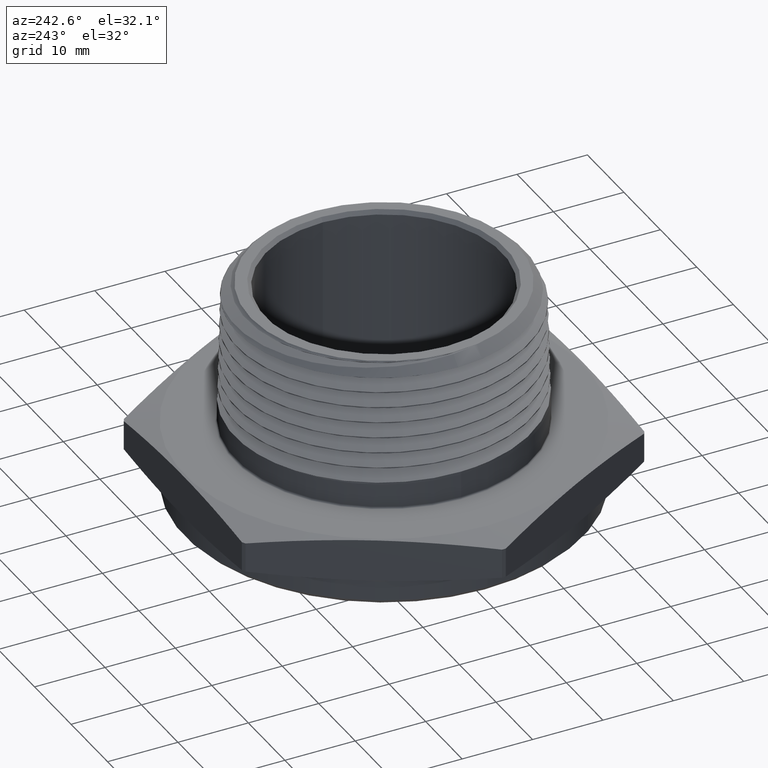
[diagram: clean part render]
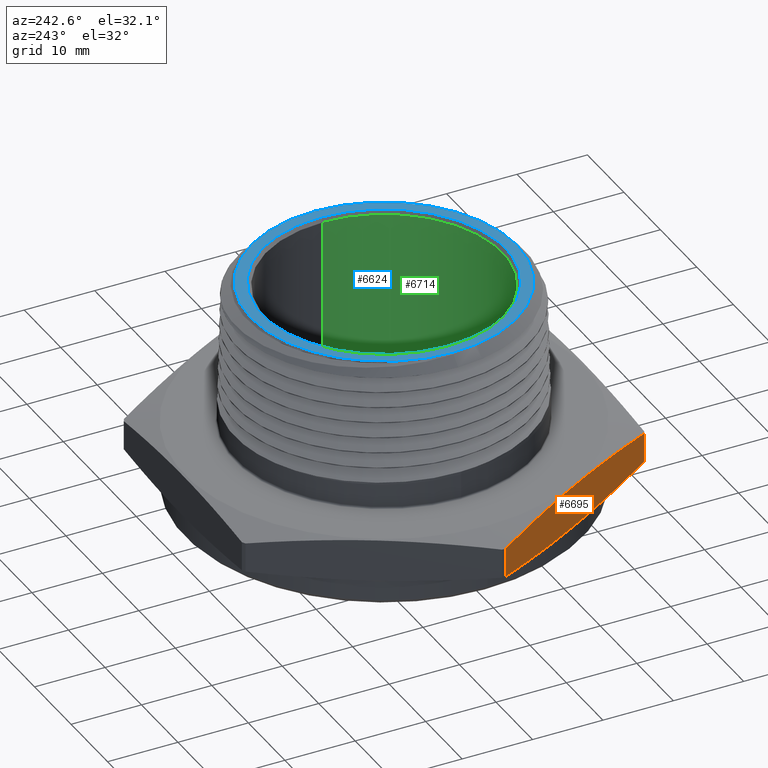
[diagram: same view with three faces highlighted in distinct colors, each labeled with its STEP entity id]
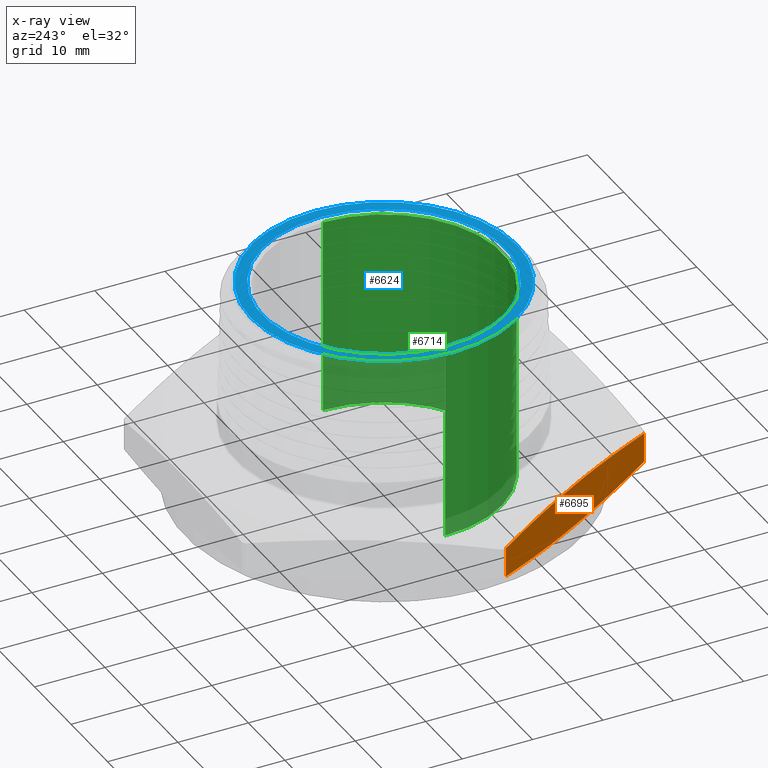
[diagram: x-ray of the same camera — body ghosted, the three highlighted faces saturated]
A machine part, auxiliary view with three faces highlighted in distinct colors.
The next image is the same camera in x-ray (body ghosted, the three faces saturated) — at least one of them is partly hidden behind the body in this view.
Their STEP definitions:

[orange] entity #6695 — the highlighted planar face has unit normal (0.866, 0.5, -0).
#12 = LINE ( 'NONE', #4220, #15 ) ;
#15 = VECTOR ( 'NONE', #4221, 39.37007874015748100 ) ;
#101 = LINE ( 'NONE', #5546, #114 ) ;
#114 = VECTOR ( 'NONE', #5547, 39.37007874015748100 ) ;
#187 = FACE_OUTER_BOUND ( 'NONE', #2501, .T. ) ;
#271 = AXIS2_PLACEMENT_3D ( 'NONE', #5781, #5786, #5787 ) ;
#473 = ORIENTED_EDGE ( 'NONE', *, *, #3991, .T. ) ;
#474 = ORIENTED_EDGE ( 'NONE', *, *, #4035, .T. ) ;
#475 = ORIENTED_EDGE ( 'NONE', *, *, #4002, .T. ) ;
#476 = ORIENTED_EDGE ( 'NONE', *, *, #4131, .T. ) ;
#2501 = EDGE_LOOP ( 'NONE', ( #473, #474, #475, #476 ) ) ;
#3991 = EDGE_CURVE ( 'NONE', #6254, #6331, #6643, .T. ) ;
#4002 = EDGE_CURVE ( 'NONE', #6303, #6252, #6645, .T. ) ;
#4035 = EDGE_CURVE ( 'NONE', #6331, #6303, #12, .T. ) ;
#4131 = EDGE_CURVE ( 'NONE', #6252, #6254, #101, .T. ) ;
#4220 = CARTESIAN_POINT ( 'NONE',  ( -0.6555614073276299100, -1.114534335027189000, -3.999857633734060300E-017 ) ) ;
#4221 = DIRECTION ( 'NONE',  ( 1.254986547952384500E-016, 0.0000000000000000000, 1.000000000000000000 ) ) ;
#5369 = CARTESIAN_POINT ( 'NONE',  ( -1.239876222532379400, -0.1024713874773429800, 0.02671091992180358400 ) ) ;
#5370 = CARTESIAN_POINT ( 'NONE',  ( -1.186756693877402100, -0.1944771099818744200, 0.01769192599360985800 ) ) ;
#5374 = CARTESIAN_POINT ( 'NONE',  ( -1.292995751187357100, -0.01046566497281166200, 0.03784316758887322500 ) ) ;
#5375 = CARTESIAN_POINT ( 'NONE',  ( -1.080517636567448000, -0.3784885549909372500, 0.005381381459842275600 ) ) ;
#5376 = CARTESIAN_POINT ( 'NONE',  ( -0.9742785792574937300, -0.5625000000000001100, -0.001130250226442271800 ) ) ;
#5377 = CARTESIAN_POINT ( 'NONE',  ( -0.8680395219475384200, -0.7465114450090627500, 0.005381381459842215700 ) ) ;
#5378 = CARTESIAN_POINT ( 'NONE',  ( -0.7618004646375845500, -0.9305228900181258300, 0.01769192599360976500 ) ) ;
#5379 = CARTESIAN_POINT ( 'NONE',  ( -0.7086809359826066200, -1.022528612522657100, 0.02671091992180349400 ) ) ;
#5380 = CARTESIAN_POINT ( 'NONE',  ( -0.6555614073276299100, -1.114534335027189000, 0.03784316758887314200 ) ) ;
#5401 = CARTESIAN_POINT ( 'NONE',  ( -0.7086809359826067300, -1.022528612522657100, 0.2132890800781963900 ) ) ;
#5403 = CARTESIAN_POINT ( 'NONE',  ( -0.7618004646375844400, -0.9305228900181258300, 0.2223080740063901300 ) ) ;
#5412 = CARTESIAN_POINT ( 'NONE',  ( -0.6555614073276299100, -1.114534335027189000, 0.2021568324111267000 ) ) ;
#5414 = CARTESIAN_POINT ( 'NONE',  ( -0.8680395219475387500, -0.7465114450090629700, 0.2346186185401576400 ) ) ;
#5415 = CARTESIAN_POINT ( 'NONE',  ( -0.9742785792574932800, -0.5624999999999998900, 0.2411302502264421600 ) ) ;
#5416 = CARTESIAN_POINT ( 'NONE',  ( -1.080517636567448000, -0.3784885549909370300, 0.2346186185401576400 ) ) ;
#5417 = CARTESIAN_POINT ( 'NONE',  ( -1.186756693877402600, -0.1944771099818742300, 0.2223080740063901300 ) ) ;
#5418 = CARTESIAN_POINT ( 'NONE',  ( -1.239876222532379800, -0.1024713874773426900, 0.2132890800781963600 ) ) ;
#5419 = CARTESIAN_POINT ( 'NONE',  ( -1.292995751187357100, -0.01046566497281166200, 0.2021568324111268100 ) ) ;
#5546 = CARTESIAN_POINT ( 'NONE',  ( -1.292995751187357100, -0.01046566497281166200, 3.999857633734060300E-017 ) ) ;
#5547 = DIRECTION ( 'NONE',  ( -1.254986547952384500E-016, -0.0000000000000000000, -1.000000000000000000 ) ) ;
#5595 = CARTESIAN_POINT ( 'NONE',  ( -1.292995751187357100, -0.01046566497281166200, 0.2021568324111268100 ) ) ;
#5597 = CARTESIAN_POINT ( 'NONE',  ( -1.292995751187357100, -0.01046566497281166200, 0.03784316758887322500 ) ) ;
#5634 = CARTESIAN_POINT ( 'NONE',  ( -0.6555614073276299100, -1.114534335027189000, 0.2021568324111267000 ) ) ;
#5656 = CARTESIAN_POINT ( 'NONE',  ( -0.6555614073276299100, -1.114534335027189000, 0.03784316758887314200 ) ) ;
#5780 = PLANE ( 'NONE',  #271 ) ;
#5781 = CARTESIAN_POINT ( 'NONE',  ( -1.299038105676658200, 1.343108137643362500E-016, 0.2399999999999999900 ) ) ;
#5786 = DIRECTION ( 'NONE',  ( 0.8660254037844386000, 0.5000000000000002200, -0.0000000000000000000 ) ) ;
#5787 = DIRECTION ( 'NONE',  ( -0.5000000000000001100, 0.8660254037844384900, 0.0000000000000000000 ) ) ;
#6252 = VERTEX_POINT ( 'NONE', #5595 ) ;
#6254 = VERTEX_POINT ( 'NONE', #5597 ) ;
#6303 = VERTEX_POINT ( 'NONE', #5634 ) ;
#6331 = VERTEX_POINT ( 'NONE', #5656 ) ;
#6643 = B_SPLINE_CURVE_WITH_KNOTS ( 'NONE', 3,
 ( #5374, #5369, #5370, #5375, #5376, #5377, #5378, #5379, #5380 ),
 .UNSPECIFIED., .F., .F.,
 ( 4, 2, 1, 2, 4 ),
 ( 1.908587031568089200E-006, 0.008097324754050101400, 0.01619274092106863500, 0.02428815708808716400, 0.03238357325510569200 ),
 .UNSPECIFIED. ) ;
#6645 = B_SPLINE_CURVE_WITH_KNOTS ( 'NONE', 3,
 ( #5412, #5401, #5403, #5414, #5415, #5416, #5417, #5418, #5419 ),
 .UNSPECIFIED., .F., .F.,
 ( 4, 2, 1, 2, 4 ),
 ( 1.908587031497364900E-006, 0.008097324754050032000, 0.01619274092106856600, 0.02428815708808710100, 0.03238357325510563000 ),
 .UNSPECIFIED. ) ;
#6695 = ADVANCED_FACE ( 'NONE', ( #187 ), #5780, .F. ) ;

[blue] entity #6624 — the highlighted planar face has unit normal (0, 0, 1).
#22 = CIRCLE ( 'NONE', #4152, 0.6799999999999999400 ) ;
#67 = CIRCLE ( 'NONE', #4174, 0.6799999999999999400 ) ;
#122 = FACE_OUTER_BOUND ( 'NONE', #2499, .T. ) ;
#151 = FACE_BOUND ( 'NONE', #4812, .T. ) ;
#245 = AXIS2_PLACEMENT_3D ( 'NONE', #5708, #5706, #5712 ) ;
#2499 = EDGE_LOOP ( 'NONE', ( #2576, #2575 ) ) ;
#2573 = ORIENTED_EDGE ( 'NONE', *, *, #4082, .F. ) ;
#2574 = ORIENTED_EDGE ( 'NONE', *, *, #4043, .F. ) ;
#2575 = ORIENTED_EDGE ( 'NONE', *, *, #4008, .F. ) ;
#2576 = ORIENTED_EDGE ( 'NONE', *, *, #4013, .F. ) ;
#4008 = EDGE_CURVE ( 'NONE', #6277, #6296, #7710, .T. ) ;
#4013 = EDGE_CURVE ( 'NONE', #6296, #6277, #4779, .T. ) ;
#4043 = EDGE_CURVE ( 'NONE', #6216, #6217, #22, .T. ) ;
#4082 = EDGE_CURVE ( 'NONE', #6217, #6216, #67, .T. ) ;
#4143 = AXIS2_PLACEMENT_3D ( 'NONE', #5450, #5451, #5452 ) ;
#4144 = AXIS2_PLACEMENT_3D ( 'NONE', #5511, #5512, #5513 ) ;
#4152 = AXIS2_PLACEMENT_3D ( 'NONE', #4263, #4264, #4265 ) ;
#4174 = AXIS2_PLACEMENT_3D ( 'NONE', #4535, #4536, #4537 ) ;
#4263 = CARTESIAN_POINT ( 'NONE',  ( 3.673940397442165500E-018, 0.0000000000000000000, 1.050000000000000000 ) ) ;
#4264 = DIRECTION ( 'NONE',  ( -0.0000000000000000000, -0.0000000000000000000, 1.000000000000000000 ) ) ;
#4265 = DIRECTION ( 'NONE',  ( 1.000000000000000000, 0.0000000000000000000, 0.0000000000000000000 ) ) ;
#4535 = CARTESIAN_POINT ( 'NONE',  ( 3.673940397442165500E-018, 0.0000000000000000000, 1.050000000000000000 ) ) ;
#4536 = DIRECTION ( 'NONE',  ( -0.0000000000000000000, -0.0000000000000000000, 1.000000000000000000 ) ) ;
#4537 = DIRECTION ( 'NONE',  ( 1.000000000000000000, 0.0000000000000000000, 0.0000000000000000000 ) ) ;
#4779 = CIRCLE ( 'NONE', #4144, 0.7437499999999986900 ) ;
#4812 = EDGE_LOOP ( 'NONE', ( #2574, #2573 ) ) ;
#5450 = CARTESIAN_POINT ( 'NONE',  ( 0.0000000000000000000, 0.0000000000000000000, 1.050000000000000000 ) ) ;
#5451 = DIRECTION ( 'NONE',  ( -0.0000000000000000000, -0.0000000000000000000, -1.000000000000000000 ) ) ;
#5452 = DIRECTION ( 'NONE',  ( -1.000000000000000000, 0.0000000000000000000, 0.0000000000000000000 ) ) ;
#5511 = CARTESIAN_POINT ( 'NONE',  ( 0.0000000000000000000, 0.0000000000000000000, 1.050000000000000000 ) ) ;
#5512 = DIRECTION ( 'NONE',  ( -0.0000000000000000000, -0.0000000000000000000, -1.000000000000000000 ) ) ;
#5513 = DIRECTION ( 'NONE',  ( -1.000000000000000000, 0.0000000000000000000, 0.0000000000000000000 ) ) ;
#5562 = CARTESIAN_POINT ( 'NONE',  ( 0.6799999999999999400, 0.0000000000000000000, 1.050000000000000000 ) ) ;
#5563 = CARTESIAN_POINT ( 'NONE',  ( -0.6799999999999999400, 8.327598234202001900E-017, 1.050000000000000000 ) ) ;
#5620 = CARTESIAN_POINT ( 'NONE',  ( 0.7437499999999986900, 9.455255948274490100E-017, 1.050000000000000000 ) ) ;
#5635 = CARTESIAN_POINT ( 'NONE',  ( -0.7437499999999986900, 0.0000000000000000000, 1.050000000000000000 ) ) ;
#5706 = DIRECTION ( 'NONE',  ( 0.0000000000000000000, 0.0000000000000000000, 1.000000000000000000 ) ) ;
#5708 = CARTESIAN_POINT ( 'NONE',  ( 0.0000000000000000000, 0.0000000000000000000, 1.050000000000000000 ) ) ;
#5710 = PLANE ( 'NONE',  #245 ) ;
#5712 = DIRECTION ( 'NONE',  ( 1.000000000000000000, 0.0000000000000000000, -0.0000000000000000000 ) ) ;
#6216 = VERTEX_POINT ( 'NONE', #5562 ) ;
#6217 = VERTEX_POINT ( 'NONE', #5563 ) ;
#6277 = VERTEX_POINT ( 'NONE', #5620 ) ;
#6296 = VERTEX_POINT ( 'NONE', #5635 ) ;
#6624 = ADVANCED_FACE ( 'NONE', ( #122, #151 ), #5710, .T. ) ;
#7710 = CIRCLE ( 'NONE', #4143, 0.7437499999999986900 ) ;

[green] entity #6714 — the highlighted cylindrical surface (partial cylindrical patch) has radius 16.764 mm, axis along (-0, -0, 1).
#54 = LINE ( 'NONE', #4513, #57 ) ;
#57 = VECTOR ( 'NONE', #4514, 39.37007874015748100 ) ;
#63 = LINE ( 'NONE', #4529, #66 ) ;
#65 = CIRCLE ( 'NONE', #4175, 0.6599999999999999200 ) ;
#66 = VECTOR ( 'NONE', #4530, 39.37007874015748100 ) ;
#71 = CIRCLE ( 'NONE', #4176, 0.6599999999999999200 ) ;
#216 = FACE_OUTER_BOUND ( 'NONE', #2525, .T. ) ;
#219 = CYLINDRICAL_SURFACE ( 'NONE', #288, 0.6600000000000000300 ) ;
#288 = AXIS2_PLACEMENT_3D ( 'NONE', #4854, #4850, #4851 ) ;
#385 = ORIENTED_EDGE ( 'NONE', *, *, #4085, .F. ) ;
#390 = ORIENTED_EDGE ( 'NONE', *, *, #4080, .T. ) ;
#394 = ORIENTED_EDGE ( 'NONE', *, *, #4086, .T. ) ;
#395 = ORIENTED_EDGE ( 'NONE', *, *, #4074, .F. ) ;
#2525 = EDGE_LOOP ( 'NONE', ( #385, #390, #394, #395 ) ) ;
#4074 = EDGE_CURVE ( 'NONE', #6215, #6219, #54, .T. ) ;
#4080 = EDGE_CURVE ( 'NONE', #6285, #6218, #63, .T. ) ;
#4085 = EDGE_CURVE ( 'NONE', #6285, #6215, #65, .T. ) ;
#4086 = EDGE_CURVE ( 'NONE', #6218, #6219, #71, .T. ) ;
#4175 = AXIS2_PLACEMENT_3D ( 'NONE', #4562, #4563, #4564 ) ;
#4176 = AXIS2_PLACEMENT_3D ( 'NONE', #4567, #4568, #4569 ) ;
#4513 = CARTESIAN_POINT ( 'NONE',  ( 0.6600000000000000300, 0.0000000000000000000, -0.1499999999999999900 ) ) ;
#4514 = DIRECTION ( 'NONE',  ( -0.0000000000000000000, -0.0000000000000000000, 1.000000000000000000 ) ) ;
#4529 = CARTESIAN_POINT ( 'NONE',  ( -0.6600000000000000300, 8.082668874372531800E-017, -0.1499999999999999900 ) ) ;
#4530 = DIRECTION ( 'NONE',  ( -0.0000000000000000000, -0.0000000000000000000, 1.000000000000000000 ) ) ;
#4562 = CARTESIAN_POINT ( 'NONE',  ( 3.673940397442165500E-018, 0.0000000000000000000, -0.07199999999999993900 ) ) ;
#4563 = DIRECTION ( 'NONE',  ( -0.0000000000000000000, -0.0000000000000000000, 1.000000000000000000 ) ) ;
#4564 = DIRECTION ( 'NONE',  ( 1.000000000000000000, 0.0000000000000000000, 0.0000000000000000000 ) ) ;
#4567 = CARTESIAN_POINT ( 'NONE',  ( 3.673940397442165500E-018, 0.0000000000000000000, 1.030000000000000000 ) ) ;
#4568 = DIRECTION ( 'NONE',  ( -0.0000000000000000000, -0.0000000000000000000, 1.000000000000000000 ) ) ;
#4569 = DIRECTION ( 'NONE',  ( 1.000000000000000000, 0.0000000000000000000, 0.0000000000000000000 ) ) ;
#4850 = DIRECTION ( 'NONE',  ( -0.0000000000000000000, -0.0000000000000000000, 1.000000000000000000 ) ) ;
#4851 = DIRECTION ( 'NONE',  ( 1.000000000000000000, 0.0000000000000000000, 0.0000000000000000000 ) ) ;
#4854 = CARTESIAN_POINT ( 'NONE',  ( 3.673940397442165500E-018, 0.0000000000000000000, -0.1499999999999999900 ) ) ;
#5560 = CARTESIAN_POINT ( 'NONE',  ( -0.6599999999999999200, 8.082668874372529300E-017, 1.030000000000000000 ) ) ;
#5561 = CARTESIAN_POINT ( 'NONE',  ( 0.6599999999999999200, 0.0000000000000000000, -0.07199999999999993900 ) ) ;
#5564 = CARTESIAN_POINT ( 'NONE',  ( 0.6599999999999999200, 0.0000000000000000000, 1.030000000000000000 ) ) ;
#5622 = CARTESIAN_POINT ( 'NONE',  ( -0.6599999999999999200, 8.082668874372529300E-017, -0.07199999999999993900 ) ) ;
#6215 = VERTEX_POINT ( 'NONE', #5561 ) ;
#6218 = VERTEX_POINT ( 'NONE', #5560 ) ;
#6219 = VERTEX_POINT ( 'NONE', #5564 ) ;
#6285 = VERTEX_POINT ( 'NONE', #5622 ) ;
#6714 = ADVANCED_FACE ( 'NONE', ( #216 ), #219, .F. ) ;